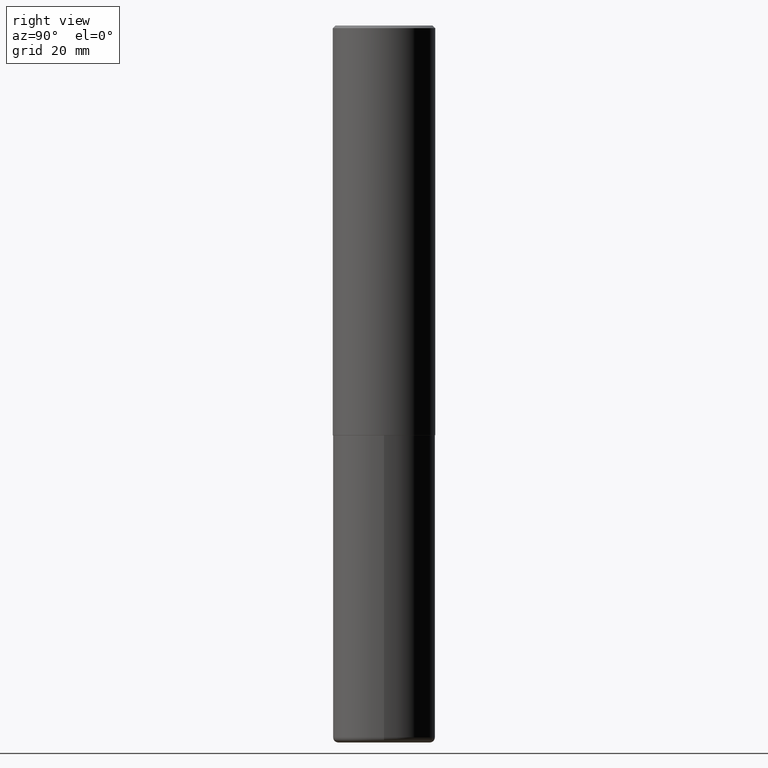
[diagram: clean part render]
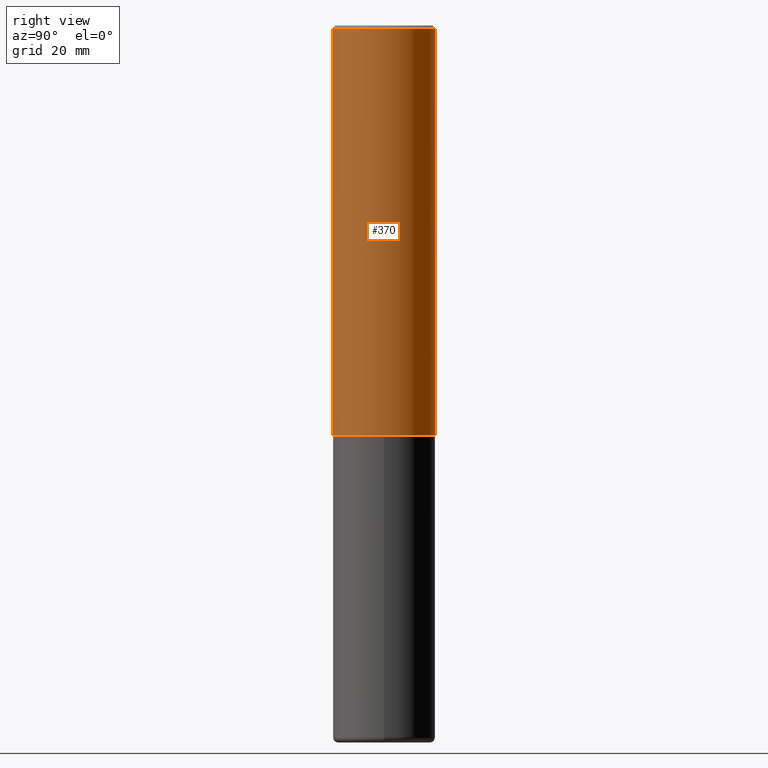
[diagram: same view with one face highlighted and labeled with its STEP entity id]
A machine part, right view. The second image highlights one B-rep face of the part: STEP entity #370.
In plain terms, the highlighted cylindrical surface (partial cylindrical patch) has radius 10 mm, axis along (-0, 0, 1).
Its self-contained STEP definition (entity closure, byte-faithful):
#8 = ORIENTED_EDGE ( 'NONE', *, *, #382, .T. ) ;
#26 = VERTEX_POINT ( 'NONE', #228 ) ;
#27 = DIRECTION ( 'NONE',  ( -6.982962677686265133E-15, -1.000000000000000000, 3.491137977679279029E-15 ) ) ;
#33 = DIRECTION ( 'NONE',  ( -2.447621189918199031E-29, 3.488399002831325748E-15, 1.000000000000000000 ) ) ;
#34 = ORIENTED_EDGE ( 'NONE', *, *, #52, .T. ) ;
#37 = ORIENTED_EDGE ( 'NONE', *, *, #66, .F. ) ;
#43 = CARTESIAN_POINT ( 'NONE',  ( 2.749192406205084005E-15, 0.3937000000000000499, -0.02000000000000144718 ) ) ;
#52 = EDGE_CURVE ( 'NONE', #26, #88, #137, .T. ) ;
#66 = EDGE_CURVE ( 'NONE', #97, #203, #173, .T. ) ;
#77 = CARTESIAN_POINT ( 'NONE',  ( 2.797406750687515575E-15, 0.3937000000000002164, -1.373382687414693916E-15 ) ) ;
#87 = CYLINDRICAL_SURFACE ( 'NONE', #157, 0.3937000000000002164 ) ;
#88 = VERTEX_POINT ( 'NONE', #43 ) ;
#97 = VERTEX_POINT ( 'NONE', #352 ) ;
#120 = DIRECTION ( 'NONE',  ( -2.447621189918199031E-29, 3.488399002831325748E-15, 1.000000000000000000 ) ) ;
#125 = DIRECTION ( 'NONE',  ( -2.447621189918199031E-29, 3.488399002831325748E-15, 1.000000000000000000 ) ) ;
#137 = LINE ( 'NONE', #77, #341 ) ;
#152 = CARTESIAN_POINT ( 'NONE',  ( 0.000000000000000000, 0.000000000000000000, 0.000000000000000000 ) ) ;
#157 = AXIS2_PLACEMENT_3D ( 'NONE', #152, #125, #284 ) ;
#158 = FACE_OUTER_BOUND ( 'NONE', #360, .T. ) ;
#173 = LINE ( 'NONE', #386, #394 ) ;
#176 = AXIS2_PLACEMENT_3D ( 'NONE', #369, #33, #27 ) ;
#183 = CARTESIAN_POINT ( 'NONE',  ( 7.706580078576441267E-29, -1.098357310031471265E-14, -3.148600000000000065 ) ) ;
#203 = VERTEX_POINT ( 'NONE', #339 ) ;
#228 = CARTESIAN_POINT ( 'NONE',  ( 2.797406750687554229E-15, 0.3936999999999892808, -3.148600000000001398 ) ) ;
#260 = CIRCLE ( 'NONE', #350, 0.3937000000000002720 ) ;
#271 = DIRECTION ( 'NONE',  ( -2.447621189918198751E-29, 3.488399002831325748E-15, 1.000000000000000000 ) ) ;
#284 = DIRECTION ( 'NONE',  ( -6.982962677686265922E-15, -1.000000000000000000, 3.488399002831326143E-15 ) ) ;
#285 = ORIENTED_EDGE ( 'NONE', *, *, #314, .F. ) ;
#314 = EDGE_CURVE ( 'NONE', #203, #88, #396, .T. ) ;
#339 = CARTESIAN_POINT ( 'NONE',  ( -2.700978061722651647E-15, -0.3937000000000001609, -0.01999999999999869937 ) ) ;
#341 = VECTOR ( 'NONE', #384, 39.37007874015748143 ) ;
#350 = AXIS2_PLACEMENT_3D ( 'NONE', #183, #120, #405 ) ;
#352 = CARTESIAN_POINT ( 'NONE',  ( -2.749192406205007880E-15, -0.3937000000000113187, -3.148599999999998289 ) ) ;
#360 = EDGE_LOOP ( 'NONE', ( #8, #34, #285, #37 ) ) ;
#369 = CARTESIAN_POINT ( 'NONE',  ( 4.895242379836416489E-31, -6.976798005662675704E-17, -0.02000000000000007327 ) ) ;
#370 = ADVANCED_FACE ( 'NONE', ( #158 ), #87, .T. ) ;
#382 = EDGE_CURVE ( 'NONE', #97, #26, #260, .T. ) ;
#384 = DIRECTION ( 'NONE',  ( -2.447621189918198751E-29, 3.488399002831325748E-15, 1.000000000000000000 ) ) ;
#386 = CARTESIAN_POINT ( 'NONE',  ( -2.749192406205084400E-15, -0.3937000000000002164, 1.373382687414693916E-15 ) ) ;
#394 = VECTOR ( 'NONE', #271, 39.37007874015748143 ) ;
#396 = CIRCLE ( 'NONE', #176, 0.3937000000000001054 ) ;
#405 = DIRECTION ( 'NONE',  ( -6.982962677686265922E-15, -1.000000000000000000, 4.163344669033672479E-15 ) ) ;